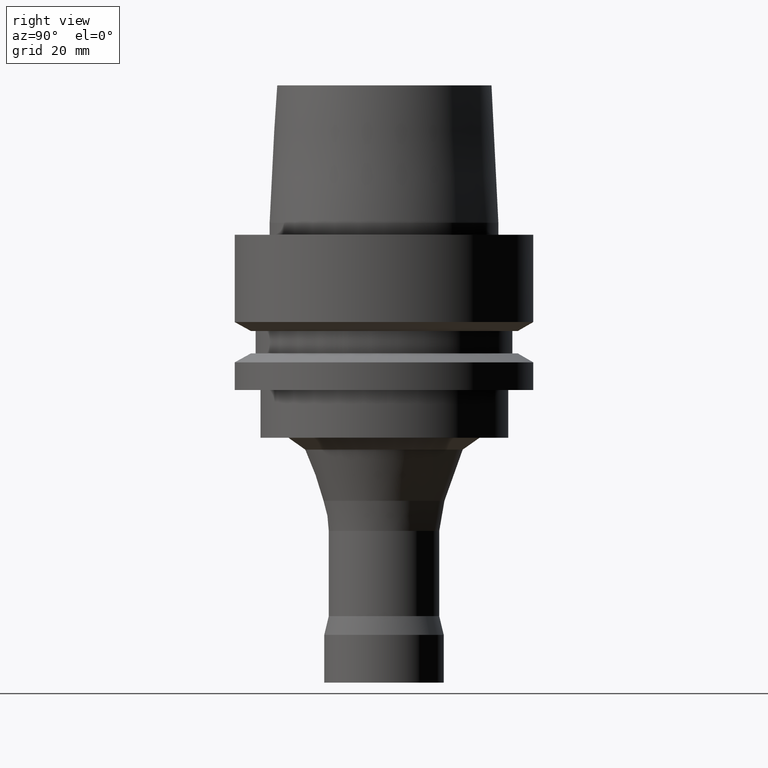
[diagram: clean part render]
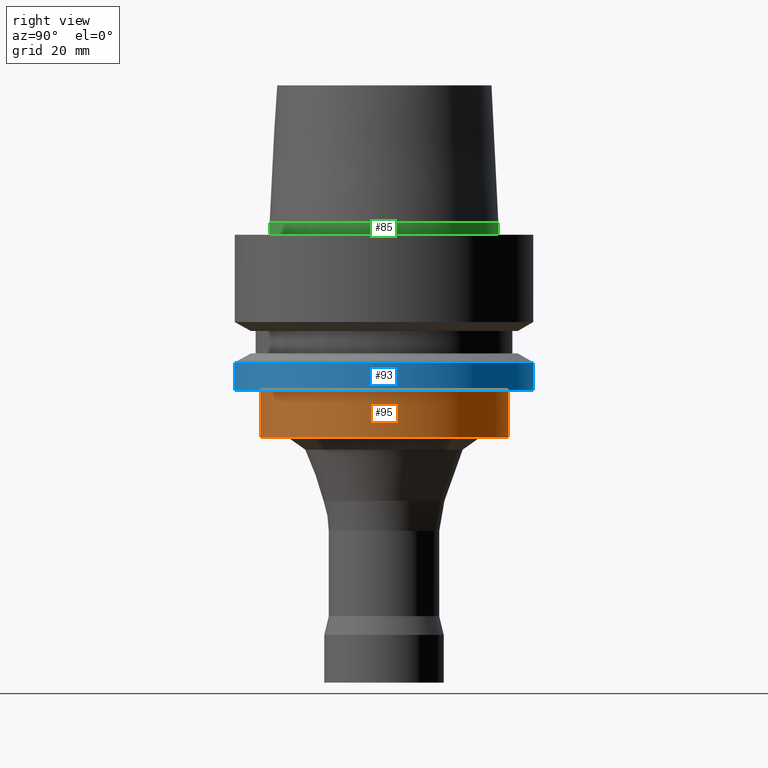
[diagram: same view with three faces highlighted in distinct colors, each labeled with its STEP entity id]
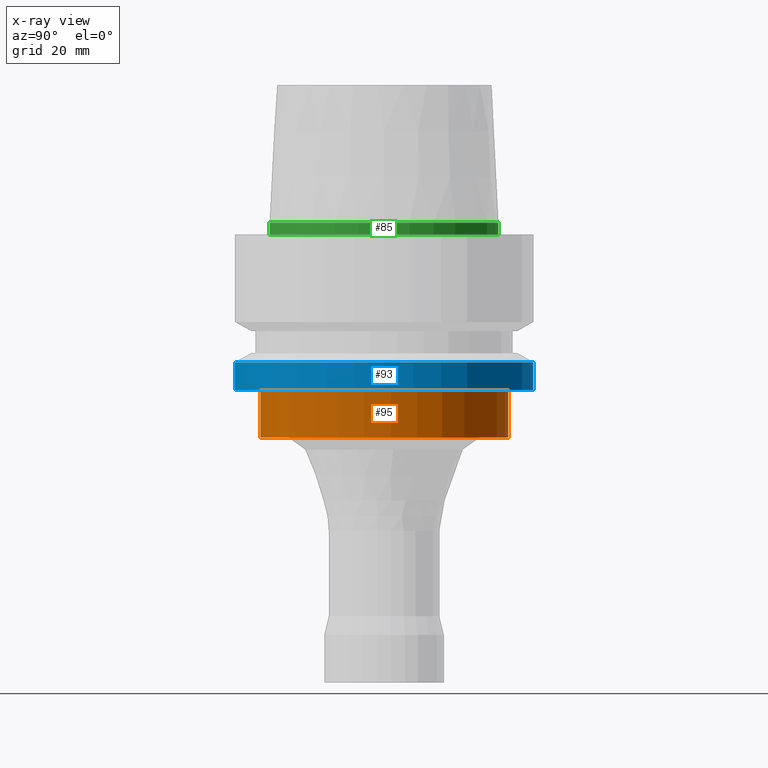
[diagram: x-ray of the same camera — body ghosted, the three highlighted faces saturated]
A machine part, right view with three faces highlighted in distinct colors.
The next image is the same camera in x-ray (body ghosted, the three faces saturated) — at least one of them is partly hidden behind the body in this view.
Their STEP definitions:

[orange] entity #95 — the highlighted cylindrical surface (bore or boss wall) has radius 20.8 mm, axis along (-0, -0, 1).
#95=ADVANCED_FACE('',(#155,#156),#157,.T.);
#155=FACE_BOUND('',#216,.T.);
#156=FACE_BOUND('',#217,.T.);
#157=CYLINDRICAL_SURFACE('',#218,20.8);
#216=EDGE_LOOP('',(#317));
#217=EDGE_LOOP('',(#318));
#218=AXIS2_PLACEMENT_3D('',#319,#320,#321);
#317=ORIENTED_EDGE('',*,*,#329,.F.);
#318=ORIENTED_EDGE('',*,*,#341,.T.);
#319=CARTESIAN_POINT('',(1.83697019872103E-015,3.67394039744206E-015,-30.0));
#320=DIRECTION('',(-6.12323399573677E-017,-1.22464679914735E-016,1.0));
#321=DIRECTION('',(-1.23259516440783E-032,1.0,1.22464679914735E-016));
#329=EDGE_CURVE('',#356,#356,#357,.T.);
#341=EDGE_CURVE('',#380,#380,#381,.T.);
#356=VERTEX_POINT('',#396);
#357=CIRCLE('',#397,20.8);
#380=VERTEX_POINT('',#420);
#381=CIRCLE('',#421,20.8);
#396=CARTESIAN_POINT('',(2.0818995585505E-015,20.8,-34.0));
#397=AXIS2_PLACEMENT_3D('',#443,#444,#445);
#420=CARTESIAN_POINT('',(1.59204083889156E-015,20.8,-26.0));
#421=AXIS2_PLACEMENT_3D('',#479,#480,#481);
#443=CARTESIAN_POINT('',(2.0818995585505E-015,4.163799117101E-015,-34.0));
#444=DIRECTION('',(6.12323399573677E-017,1.22464679914735E-016,-1.0));
#445=DIRECTION('',(-1.23259516440783E-032,1.0,1.22464679914735E-016));
#479=CARTESIAN_POINT('',(1.59204083889156E-015,3.18408167778312E-015,-26.0));
#480=DIRECTION('',(6.12323399573677E-017,1.22464679914735E-016,-1.0));
#481=DIRECTION('',(-1.23259516440783E-032,1.0,1.22464679914735E-016));

[blue] entity #93 — the highlighted cylindrical surface (bore or boss wall) has radius 25 mm, axis along (-0, -0, 1).
#93=ADVANCED_FACE('',(#149,#150),#151,.T.);
#149=FACE_BOUND('',#210,.T.);
#150=FACE_BOUND('',#211,.T.);
#151=CYLINDRICAL_SURFACE('',#212,25.0);
#210=EDGE_LOOP('',(#307));
#211=EDGE_LOOP('',(#308));
#212=AXIS2_PLACEMENT_3D('',#309,#310,#311);
#307=ORIENTED_EDGE('',*,*,#340,.F.);
#308=ORIENTED_EDGE('',*,*,#339,.T.);
#309=CARTESIAN_POINT('',(1.45051756469206E-015,2.90103512938411E-015,-23.688749535));
#310=DIRECTION('',(-6.12323399573677E-017,-1.22464679914735E-016,1.0));
#311=DIRECTION('',(-1.23259516440783E-032,1.0,1.22464679914735E-016));
#339=EDGE_CURVE('',#376,#376,#377,.T.);
#340=EDGE_CURVE('',#378,#378,#379,.T.);
#376=VERTEX_POINT('',#416);
#377=CIRCLE('',#417,25.0);
#378=VERTEX_POINT('',#418);
#379=CIRCLE('',#419,25.0);
#416=CARTESIAN_POINT('',(1.30899429049255E-015,25.0,-21.37749907));
#417=AXIS2_PLACEMENT_3D('',#473,#474,#475);
#418=CARTESIAN_POINT('',(1.59204083889156E-015,25.0,-26.0));
#419=AXIS2_PLACEMENT_3D('',#476,#477,#478);
#473=CARTESIAN_POINT('',(1.30899429049255E-015,2.6179885809851E-015,-21.37749907));
#474=DIRECTION('',(6.12323399573677E-017,1.22464679914735E-016,-1.0));
#475=DIRECTION('',(-1.23259516440783E-032,1.0,1.22464679914735E-016));
#476=CARTESIAN_POINT('',(1.59204083889156E-015,3.18408167778312E-015,-26.0));
#477=DIRECTION('',(6.12323399573677E-017,1.22464679914735E-016,-1.0));
#478=DIRECTION('',(-1.23259516440783E-032,1.0,1.22464679914735E-016));

[green] entity #85 — the highlighted cylindrical surface (bore or boss wall) has radius 19.15 mm, axis along (-0, -0, 1).
#85=ADVANCED_FACE('',(#125,#126),#127,.T.);
#125=FACE_BOUND('',#186,.T.);
#126=FACE_BOUND('',#187,.T.);
#127=CYLINDRICAL_SURFACE('',#188,19.15);
#186=EDGE_LOOP('',(#267));
#187=EDGE_LOOP('',(#268));
#188=AXIS2_PLACEMENT_3D('',#269,#270,#271);
#267=ORIENTED_EDGE('',*,*,#332,.F.);
#268=ORIENTED_EDGE('',*,*,#331,.T.);
#269=CARTESIAN_POINT('',(-6.12323399573677E-017,-1.22464679914735E-016,1.0));
#270=DIRECTION('',(-6.12323399573677E-017,-1.22464679914735E-016,1.0));
#271=DIRECTION('',(-1.23259516440783E-032,1.0,1.22464679914735E-016));
#331=EDGE_CURVE('',#360,#360,#361,.T.);
#332=EDGE_CURVE('',#362,#362,#363,.T.);
#360=VERTEX_POINT('',#400);
#361=CIRCLE('',#401,19.15);
#362=VERTEX_POINT('',#402);
#363=CIRCLE('',#403,19.15);
#400=CARTESIAN_POINT('',(-1.22464679914736E-016,19.15,2.0));
#401=AXIS2_PLACEMENT_3D('',#449,#450,#451);
#402=CARTESIAN_POINT('',(-2.360419739841E-031,19.15,2.34519862036718E-015));
#403=AXIS2_PLACEMENT_3D('',#452,#453,#454);
#449=CARTESIAN_POINT('',(-1.22464679914735E-016,-2.44929359829471E-016,2.0));
#450=DIRECTION('',(6.12323399573677E-017,1.22464679914735E-016,-1.0));
#451=DIRECTION('',(-1.23259516440783E-032,1.0,1.22464679914735E-016));
#452=CARTESIAN_POINT('',(0.0,0.0,0.0));
#453=DIRECTION('',(6.12323399573677E-017,1.22464679914735E-016,-1.0));
#454=DIRECTION('',(-1.23259516440783E-032,1.0,1.22464679914735E-016));